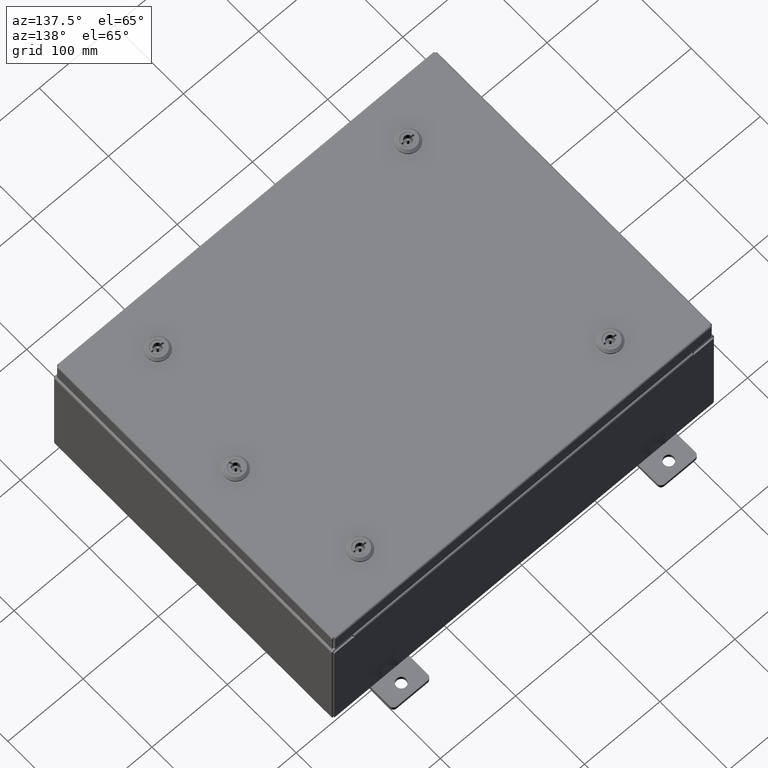
[diagram: clean part render]
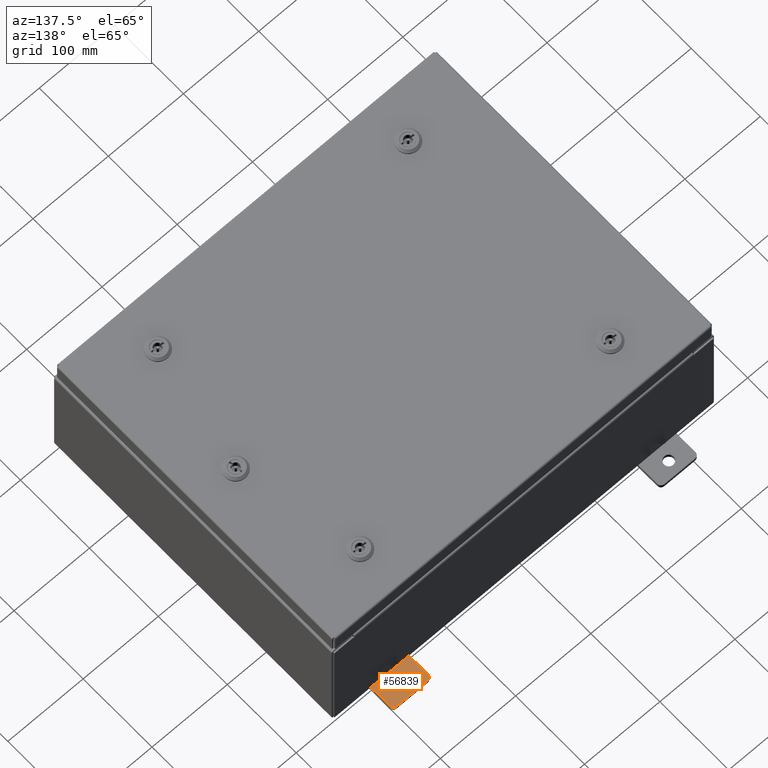
[diagram: same view with one face highlighted and labeled with its STEP entity id]
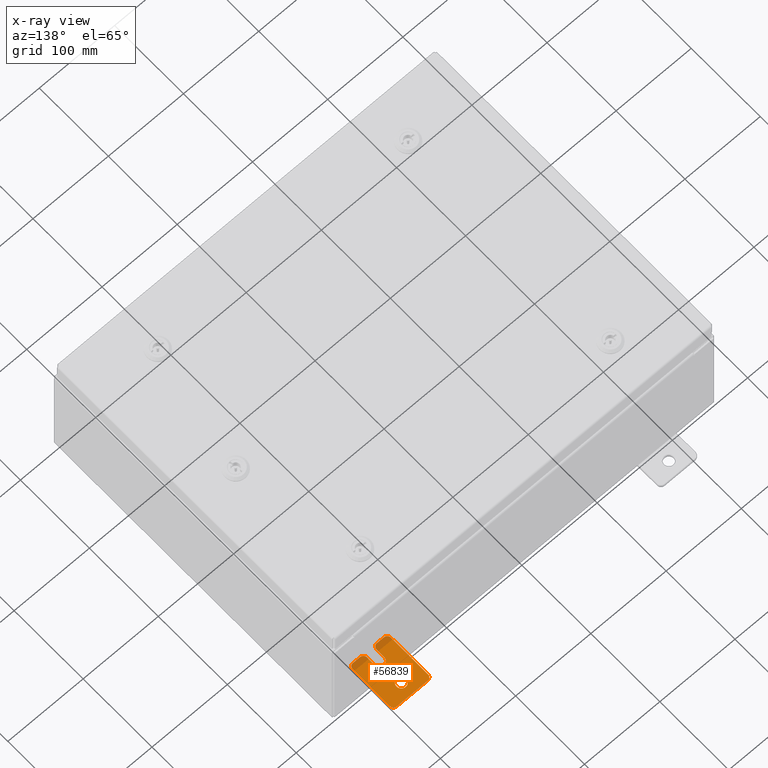
[diagram: x-ray of the same camera — body ghosted, the highlighted face saturated]
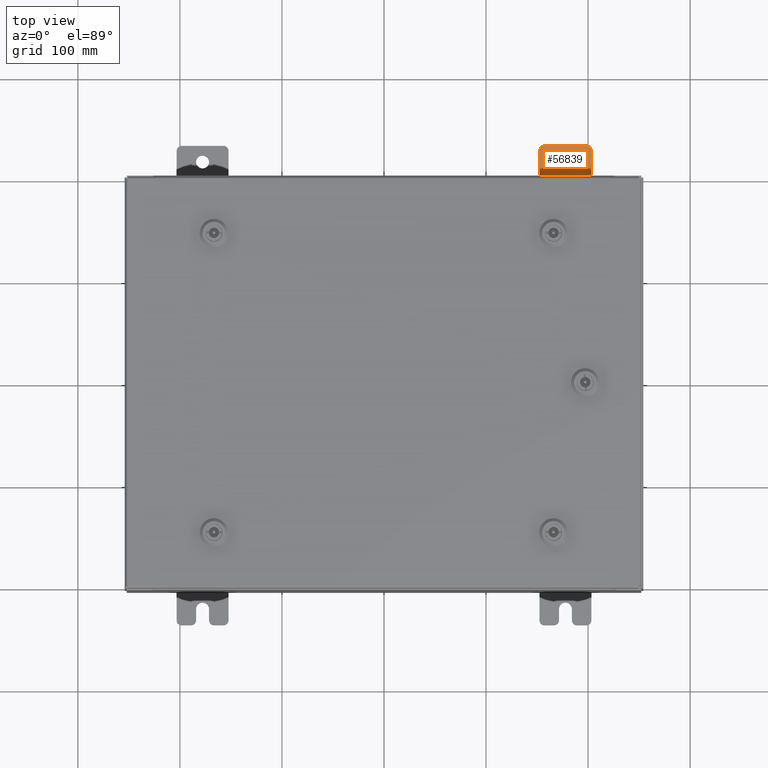
[diagram: same view with one face highlighted and labeled with its STEP entity id]
A machine part, auxiliary view. The second image highlights one B-rep face of the part: STEP entity #56839.
The next image is the same camera in x-ray: the body ghosted, the highlighted face saturated — about 9% of this face is hidden behind the body in this view.
A second angle (top view) of the same face is appended — the face is thin or edge-on in the first view.
In plain terms, the highlighted planar face has unit normal (0, 0, 1).
Its self-contained STEP definition (entity closure, byte-faithful):
#864 = DIRECTION ( 'NONE',  ( 0.0000000000000000000, 0.0000000000000000000, -1.000000000000000000 ) ) ;
#1002 = VERTEX_POINT ( 'NONE', #42410 ) ;
#1398 = CARTESIAN_POINT ( 'NONE',  ( 0.0000000000000000000, -1.060000000000001200, 0.9999999999999988900 ) ) ;
#1530 = CARTESIAN_POINT ( 'NONE',  ( 0.0000000000000000000, 1.249999999999997300, 0.8099999999999935000 ) ) ;
#2028 = CARTESIAN_POINT ( 'NONE',  ( 0.0000000000000000000, -1.060000000000004100, -0.8100000000000050500 ) ) ;
#2120 = DIRECTION ( 'NONE',  ( 1.000000000000000000, 0.0000000000000000000, -0.0000000000000000000 ) ) ;
#2719 = DIRECTION ( 'NONE',  ( -5.163192708025533800E-017, 0.0000000000000000000, -1.000000000000000000 ) ) ;
#2869 = ORIENTED_EDGE ( 'NONE', *, *, #41104, .T. ) ;
#3080 = CARTESIAN_POINT ( 'NONE',  ( 0.0000000000000000000, 1.059999999999993600, -0.8100000000000089400 ) ) ;
#4126 = CARTESIAN_POINT ( 'NONE',  ( 0.0000000000000000000, -1.250000000000002200, 0.9999999999999992200 ) ) ;
#4349 = FACE_OUTER_BOUND ( 'NONE', #52865, .T. ) ;
#5036 = LINE ( 'NONE', #29219, #42422 ) ;
#5356 = AXIS2_PLACEMENT_3D ( 'NONE', #3080, #37308, #8047 ) ;
#6045 = CIRCLE ( 'NONE', #48716, 0.2499999999999999200 ) ;
#6367 = EDGE_CURVE ( 'NONE', #47520, #37749, #59357, .T. ) ;
#6637 = EDGE_CURVE ( 'NONE', #31095, #33967, #54845, .T. ) ;
#6754 = CARTESIAN_POINT ( 'NONE',  ( 0.0000000000000000000, -0.6249999999999992200, 0.2500000000000005000 ) ) ;
#6924 = CARTESIAN_POINT ( 'NONE',  ( 0.0000000000000000000, 1.059999999999993400, -1.000000000000010000 ) ) ;
#7839 = PLANE ( 'NONE',  #39584 ) ;
#8047 = DIRECTION ( 'NONE',  ( 0.0000000000000000000, 0.0000000000000000000, -1.000000000000000000 ) ) ;
#8280 = ORIENTED_EDGE ( 'NONE', *, *, #58334, .T. ) ;
#8499 = DIRECTION ( 'NONE',  ( 0.0000000000000000000, -1.000000000000000000, 1.639108796198558100E-015 ) ) ;
#8586 = EDGE_CURVE ( 'NONE', #13146, #29880, #19511, .T. ) ;
#8834 = ORIENTED_EDGE ( 'NONE', *, *, #15945, .T. ) ;
#8940 = CARTESIAN_POINT ( 'NONE',  ( 0.0000000000000000000, -1.060000000000003400, -0.4400000000000005000 ) ) ;
#11916 = VECTOR ( 'NONE', #57612, 39.37007874015748100 ) ;
#12827 = DIRECTION ( 'NONE',  ( -0.0000000000000000000, 0.0000000000000000000, -1.000000000000000000 ) ) ;
#12880 = ORIENTED_EDGE ( 'NONE', *, *, #32997, .T. ) ;
#13146 = VERTEX_POINT ( 'NONE', #60218 ) ;
#13464 = LINE ( 'NONE', #4126, #11916 ) ;
#13896 = DIRECTION ( 'NONE',  ( 0.0000000000000000000, 0.0000000000000000000, -1.000000000000000000 ) ) ;
#14530 = EDGE_CURVE ( 'NONE', #33967, #28393, #24539, .T. ) ;
#14802 = EDGE_CURVE ( 'NONE', #37749, #20284, #41163, .T. ) ;
#15017 = VERTEX_POINT ( 'NONE', #25674 ) ;
#15305 = VECTOR ( 'NONE', #8499, 39.37007874015748100 ) ;
#15430 = CARTESIAN_POINT ( 'NONE',  ( 6.829619984160658000E-017, -1.250000000000003800, 0.2500000000000005000 ) ) ;
#15635 = DIRECTION ( 'NONE',  ( 6.556435184794182400E-016, 1.000000000000000000, 0.0000000000000000000 ) ) ;
#15945 = EDGE_CURVE ( 'NONE', #62701, #15017, #46322, .T. ) ;
#16455 = CARTESIAN_POINT ( 'NONE',  ( 0.0000000000000000000, -1.060000000000004500, -1.000000000000006400 ) ) ;
#17034 = CARTESIAN_POINT ( 'NONE',  ( 0.0000000000000000000, 1.059999999999996300, 0.8099999999999938400 ) ) ;
#17076 = CARTESIAN_POINT ( 'NONE',  ( 0.0000000000000000000, -1.250000000000002200, 0.9999999999999992200 ) ) ;
#18250 = ORIENTED_EDGE ( 'NONE', *, *, #6637, .T. ) ;
#18280 = DIRECTION ( 'NONE',  ( 1.000000000000000000, -0.0000000000000000000, -5.163192708025532000E-017 ) ) ;
#18500 = AXIS2_PLACEMENT_3D ( 'NONE', #60837, #32143, #2719 ) ;
#18905 = CIRCLE ( 'NONE', #18500, 0.2499999999999999200 ) ;
#19367 = EDGE_CURVE ( 'NONE', #29411, #31095, #13464, .T. ) ;
#19511 = CIRCLE ( 'NONE', #61129, 0.1900000000000011100 ) ;
#20284 = VERTEX_POINT ( 'NONE', #1398 ) ;
#21765 = VERTEX_POINT ( 'NONE', #6924 ) ;
#22178 = ORIENTED_EDGE ( 'NONE', *, *, #6367, .T. ) ;
#22335 = VECTOR ( 'NONE', #29822, 39.37007874015748100 ) ;
#23132 = CARTESIAN_POINT ( 'NONE',  ( 0.0000000000000000000, 1.249999999999997600, 0.9999999999999951200 ) ) ;
#23982 = CIRCLE ( 'NONE', #60548, 0.2499999999999999200 ) ;
#24175 = CARTESIAN_POINT ( 'NONE',  ( 0.0000000000000000000, -1.250000000000002400, 0.8099999999999980500 ) ) ;
#24539 = LINE ( 'NONE', #15430, #59913 ) ;
#25674 = CARTESIAN_POINT ( 'NONE',  ( 1.928684683526964400E-016, -1.060000000000003400, -0.2499999999999994400 ) ) ;
#26020 = DIRECTION ( 'NONE',  ( 1.000000000000000000, 0.0000000000000000000, -0.0000000000000000000 ) ) ;
#26247 = DIRECTION ( 'NONE',  ( -1.000000000000000000, 6.523827964459549700E-016, 5.163192708025532000E-017 ) ) ;
#26334 = DIRECTION ( 'NONE',  ( 1.000000000000000000, 0.0000000000000000000, -0.0000000000000000000 ) ) ;
#27145 = DIRECTION ( 'NONE',  ( 1.000000000000000000, 0.0000000000000000000, -0.0000000000000000000 ) ) ;
#28393 = VERTEX_POINT ( 'NONE', #6754 ) ;
#29045 = AXIS2_PLACEMENT_3D ( 'NONE', #8940, #42998, #13896 ) ;
#29219 = CARTESIAN_POINT ( 'NONE',  ( 0.0000000000000000000, -1.250000000000005600, -1.000000000000006200 ) ) ;
#29411 = VERTEX_POINT ( 'NONE', #24175 ) ;
#29501 = CIRCLE ( 'NONE', #44058, 0.1900000000000011100 ) ;
#29822 = DIRECTION ( 'NONE',  ( 0.0000000000000000000, 1.639108796198553600E-015, 1.000000000000000000 ) ) ;
#29880 = VERTEX_POINT ( 'NONE', #16455 ) ;
#30221 = CIRCLE ( 'NONE', #29045, 0.1900000000000011100 ) ;
#30573 = DIRECTION ( 'NONE',  ( 0.0000000000000000000, 0.0000000000000000000, -1.000000000000000000 ) ) ;
#31090 = EDGE_LOOP ( 'NONE', ( #42267, #46806 ) ) ;
#31095 = VERTEX_POINT ( 'NONE', #40255 ) ;
#31522 = EDGE_CURVE ( 'NONE', #15017, #36363, #30221, .T. ) ;
#31773 = ORIENTED_EDGE ( 'NONE', *, *, #14802, .T. ) ;
#31856 = VERTEX_POINT ( 'NONE', #39624 ) ;
#32068 = VECTOR ( 'NONE', #38666, 39.37007874015748100 ) ;
#32143 = DIRECTION ( 'NONE',  ( 1.000000000000000000, -0.0000000000000000000, -5.163192708025532000E-017 ) ) ;
#32286 = CARTESIAN_POINT ( 'NONE',  ( 0.0000000000000000000, 0.0000000000000000000, 0.0000000000000000000 ) ) ;
#32997 = EDGE_CURVE ( 'NONE', #36363, #13146, #46819, .T. ) ;
#33947 = CARTESIAN_POINT ( 'NONE',  ( 0.0000000000000000000, 1.249999999999994700, -0.8100000000000092700 ) ) ;
#33967 = VERTEX_POINT ( 'NONE', #57926 ) ;
#34661 = CARTESIAN_POINT ( 'NONE',  ( 0.0000000000000000000, 1.249999999999994200, -1.000000000000010400 ) ) ;
#36020 = EDGE_CURVE ( 'NONE', #20284, #29411, #29501, .T. ) ;
#36363 = VERTEX_POINT ( 'NONE', #43358 ) ;
#36482 = ORIENTED_EDGE ( 'NONE', *, *, #14530, .T. ) ;
#37308 = DIRECTION ( 'NONE',  ( 1.000000000000000000, 0.0000000000000000000, -0.0000000000000000000 ) ) ;
#37749 = VERTEX_POINT ( 'NONE', #57560 ) ;
#38666 = DIRECTION ( 'NONE',  ( -6.556435184794182400E-016, -1.000000000000000000, -1.639108796198545600E-016 ) ) ;
#38674 = EDGE_CURVE ( 'NONE', #28393, #62701, #23982, .T. ) ;
#39438 = ORIENTED_EDGE ( 'NONE', *, *, #38674, .T. ) ;
#39584 = AXIS2_PLACEMENT_3D ( 'NONE', #32286, #41941, #12827 ) ;
#39624 = CARTESIAN_POINT ( 'NONE',  ( 3.910348609313009100E-016, 0.6249999999999992200, -0.2499999999999999200 ) ) ;
#40255 = CARTESIAN_POINT ( 'NONE',  ( 0.0000000000000000000, -1.250000000000003100, 0.4400000000000020000 ) ) ;
#40822 = ORIENTED_EDGE ( 'NONE', *, *, #19367, .T. ) ;
#40859 = DIRECTION ( 'NONE',  ( 0.0000000000000000000, 0.0000000000000000000, -1.000000000000000000 ) ) ;
#41104 = EDGE_CURVE ( 'NONE', #52991, #47520, #47961, .T. ) ;
#41163 = LINE ( 'NONE', #23132, #15305 ) ;
#41600 = ORIENTED_EDGE ( 'NONE', *, *, #36020, .T. ) ;
#41941 = DIRECTION ( 'NONE',  ( 1.000000000000000000, 0.0000000000000000000, -0.0000000000000000000 ) ) ;
#42267 = ORIENTED_EDGE ( 'NONE', *, *, #58762, .F. ) ;
#42410 = CARTESIAN_POINT ( 'NONE',  ( 4.168508244714285900E-016, 0.6249999999999992200, 0.2499999999999999200 ) ) ;
#42422 = VECTOR ( 'NONE', #57972, 39.37007874015748100 ) ;
#42998 = DIRECTION ( 'NONE',  ( 1.000000000000000000, 0.0000000000000000000, -0.0000000000000000000 ) ) ;
#43358 = CARTESIAN_POINT ( 'NONE',  ( 0.0000000000000000000, -1.250000000000004700, -0.4400000000000002200 ) ) ;
#44058 = AXIS2_PLACEMENT_3D ( 'NONE', #55928, #27145, #60745 ) ;
#44132 = CARTESIAN_POINT ( 'NONE',  ( 4.780733988912460100E-016, -0.6249999999999993300, -0.2499999999999993900 ) ) ;
#46074 = DIRECTION ( 'NONE',  ( 0.0000000000000000000, -1.639108796198553600E-015, -1.000000000000000000 ) ) ;
#46148 = AXIS2_PLACEMENT_3D ( 'NONE', #17034, #26334, #40859 ) ;
#46322 = LINE ( 'NONE', #44132, #32068 ) ;
#46720 = CARTESIAN_POINT ( 'NONE',  ( 4.780733988912460100E-016, -0.6249999999999993300, -0.2499999999999998600 ) ) ;
#46806 = ORIENTED_EDGE ( 'NONE', *, *, #54457, .F. ) ;
#46819 = LINE ( 'NONE', #17076, #58090 ) ;
#47220 = CARTESIAN_POINT ( 'NONE',  ( 4.039428427013647300E-016, 0.6249999999999992200, -9.783840404509077400E-018 ) ) ;
#47520 = VERTEX_POINT ( 'NONE', #1530 ) ;
#47961 = LINE ( 'NONE', #34661, #22335 ) ;
#48716 = AXIS2_PLACEMENT_3D ( 'NONE', #47220, #18280, #52002 ) ;
#49639 = CIRCLE ( 'NONE', #5356, 0.1900000000000011100 ) ;
#52002 = DIRECTION ( 'NONE',  ( -5.163192708025533800E-017, 0.0000000000000000000, -1.000000000000000000 ) ) ;
#52261 = ORIENTED_EDGE ( 'NONE', *, *, #62692, .T. ) ;
#52865 = EDGE_LOOP ( 'NONE', ( #31773, #41600, #40822, #18250, #36482, #39438, #8834, #54440, #12880, #57540, #8280, #52261, #2869, #22178 ) ) ;
#52991 = VERTEX_POINT ( 'NONE', #33947 ) ;
#54440 = ORIENTED_EDGE ( 'NONE', *, *, #31522, .T. ) ;
#54457 = EDGE_CURVE ( 'NONE', #1002, #31856, #6045, .T. ) ;
#54479 = FACE_BOUND ( 'NONE', #31090, .T. ) ;
#54845 = CIRCLE ( 'NONE', #57813, 0.1900000000000011400 ) ;
#54990 = CARTESIAN_POINT ( 'NONE',  ( 4.780733988912460100E-016, -0.6249999999999993300, 5.858939755051854500E-017 ) ) ;
#55928 = CARTESIAN_POINT ( 'NONE',  ( 0.0000000000000000000, -1.060000000000001600, 0.8099999999999978300 ) ) ;
#56839 = ADVANCED_FACE ( 'NONE', ( #54479, #4349 ), #7839, .T. ) ;
#57540 = ORIENTED_EDGE ( 'NONE', *, *, #8586, .T. ) ;
#57560 = CARTESIAN_POINT ( 'NONE',  ( 0.0000000000000000000, 1.059999999999996500, 0.9999999999999953400 ) ) ;
#57612 = DIRECTION ( 'NONE',  ( 0.0000000000000000000, -1.639108796198553600E-015, -1.000000000000000000 ) ) ;
#57813 = AXIS2_PLACEMENT_3D ( 'NONE', #58210, #26020, #30573 ) ;
#57926 = CARTESIAN_POINT ( 'NONE',  ( 1.928684683526972300E-016, -1.060000000000002100, 0.2500000000000005000 ) ) ;
#57972 = DIRECTION ( 'NONE',  ( 0.0000000000000000000, 1.000000000000000000, -1.639108796198558100E-015 ) ) ;
#58090 = VECTOR ( 'NONE', #46074, 39.37007874015748100 ) ;
#58210 = CARTESIAN_POINT ( 'NONE',  ( 0.0000000000000000000, -1.060000000000002100, 0.4400000000000016700 ) ) ;
#58334 = EDGE_CURVE ( 'NONE', #29880, #21765, #5036, .T. ) ;
#58762 = EDGE_CURVE ( 'NONE', #31856, #1002, #18905, .T. ) ;
#59357 = CIRCLE ( 'NONE', #46148, 0.1900000000000011100 ) ;
#59819 = DIRECTION ( 'NONE',  ( -6.523827964459551700E-016, -1.000000000000000000, 0.0000000000000000000 ) ) ;
#59913 = VECTOR ( 'NONE', #15635, 39.37007874015748100 ) ;
#60218 = CARTESIAN_POINT ( 'NONE',  ( 0.0000000000000000000, -1.250000000000005300, -0.8100000000000047200 ) ) ;
#60548 = AXIS2_PLACEMENT_3D ( 'NONE', #54990, #26247, #59819 ) ;
#60745 = DIRECTION ( 'NONE',  ( 0.0000000000000000000, 0.0000000000000000000, -1.000000000000000000 ) ) ;
#60837 = CARTESIAN_POINT ( 'NONE',  ( 4.039428427013647300E-016, 0.6249999999999992200, -9.783840404509077400E-018 ) ) ;
#61129 = AXIS2_PLACEMENT_3D ( 'NONE', #2028, #2120, #864 ) ;
#62692 = EDGE_CURVE ( 'NONE', #21765, #52991, #49639, .T. ) ;
#62701 = VERTEX_POINT ( 'NONE', #46720 ) ;